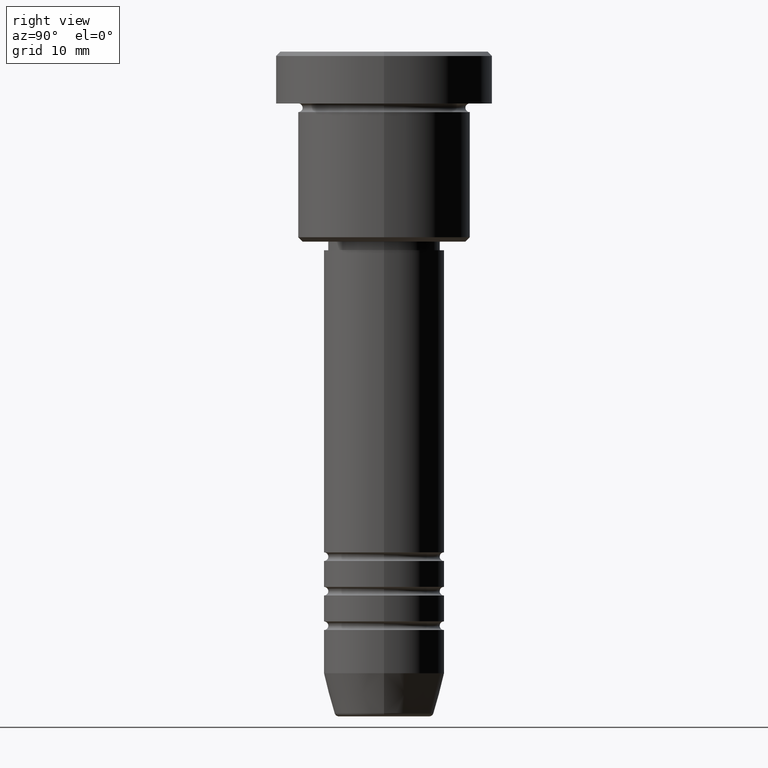
[diagram: clean part render]
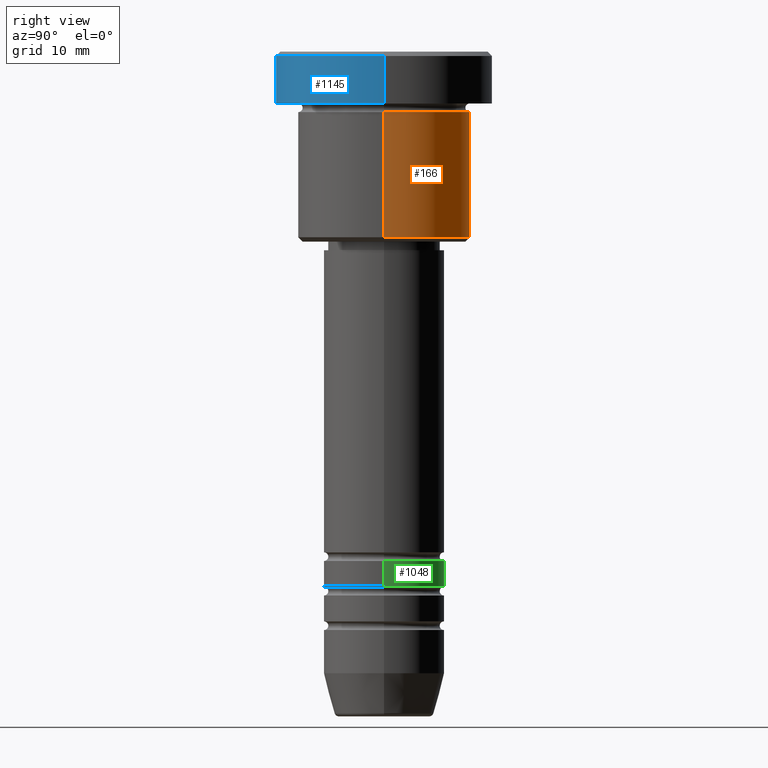
[diagram: same view with three faces highlighted in distinct colors, each labeled with its STEP entity id]
A machine part, right view with three faces highlighted in distinct colors.
Their STEP definitions:

[orange] entity #166 — the highlighted cylindrical surface (partial cylindrical patch) has radius 10 mm, axis along (-0, -0, 1).
#16 = ORIENTED_EDGE ( 'NONE', *, *, #468, .F. ) ;
#26 = EDGE_CURVE ( 'NONE', #832, #741, #337, .T. ) ;
#36 = CARTESIAN_POINT ( 'NONE',  ( -10.00000000000000000, 1.224646799147353256E-15, -6.999999999999996447 ) ) ;
#45 = CARTESIAN_POINT ( 'NONE',  ( -10.00000000000000000, 1.224646799147353256E-15, -21.50000000000001776 ) ) ;
#61 = CARTESIAN_POINT ( 'NONE',  ( 0.000000000000000000, 0.000000000000000000, 0.000000000000000000 ) ) ;
#124 = DIRECTION ( 'NONE',  ( -0.000000000000000000, -0.000000000000000000, 1.000000000000000000 ) ) ;
#130 = AXIS2_PLACEMENT_3D ( 'NONE', #61, #163, #988 ) ;
#146 = ORIENTED_EDGE ( 'NONE', *, *, #26, .T. ) ;
#158 = DIRECTION ( 'NONE',  ( -0.000000000000000000, -0.000000000000000000, 1.000000000000000000 ) ) ;
#163 = DIRECTION ( 'NONE',  ( -0.000000000000000000, -0.000000000000000000, 1.000000000000000000 ) ) ;
#166 = ADVANCED_FACE ( 'NONE', ( #738 ), #634, .T. ) ;
#169 = DIRECTION ( 'NONE',  ( -1.000000000000000000, 0.000000000000000000, 0.000000000000000000 ) ) ;
#197 = EDGE_CURVE ( 'NONE', #1147, #832, #692, .T. ) ;
#226 = VECTOR ( 'NONE', #158, 1000.000000000000000 ) ;
#227 = CARTESIAN_POINT ( 'NONE',  ( 0.000000000000000000, 0.000000000000000000, -6.999999999999996447 ) ) ;
#244 = ORIENTED_EDGE ( 'NONE', *, *, #611, .F. ) ;
#337 = LINE ( 'NONE', #984, #226 ) ;
#407 = CARTESIAN_POINT ( 'NONE',  ( 10.00000000000000000, 0.000000000000000000, -21.50000000000001776 ) ) ;
#432 = EDGE_LOOP ( 'NONE', ( #857, #146, #16, #244 ) ) ;
#443 = VECTOR ( 'NONE', #824, 1000.000000000000000 ) ;
#468 = EDGE_CURVE ( 'NONE', #746, #741, #991, .T. ) ;
#527 = CARTESIAN_POINT ( 'NONE',  ( 0.000000000000000000, 0.000000000000000000, -21.50000000000001776 ) ) ;
#611 = EDGE_CURVE ( 'NONE', #1147, #746, #1116, .T. ) ;
#634 = CYLINDRICAL_SURFACE ( 'NONE', #130, 10.00000000000000000 ) ;
#692 = CIRCLE ( 'NONE', #1170, 10.00000000000000000 ) ;
#738 = FACE_OUTER_BOUND ( 'NONE', #432, .T. ) ;
#741 = VERTEX_POINT ( 'NONE', #36 ) ;
#746 = VERTEX_POINT ( 'NONE', #784 ) ;
#784 = CARTESIAN_POINT ( 'NONE',  ( 10.00000000000000000, 0.000000000000000000, -6.999999999999996447 ) ) ;
#824 = DIRECTION ( 'NONE',  ( -0.000000000000000000, -0.000000000000000000, 1.000000000000000000 ) ) ;
#832 = VERTEX_POINT ( 'NONE', #45 ) ;
#849 = CARTESIAN_POINT ( 'NONE',  ( 10.00000000000000000, 0.000000000000000000, 0.000000000000000000 ) ) ;
#857 = ORIENTED_EDGE ( 'NONE', *, *, #197, .T. ) ;
#902 = DIRECTION ( 'NONE',  ( -0.000000000000000000, -0.000000000000000000, 1.000000000000000000 ) ) ;
#968 = DIRECTION ( 'NONE',  ( 1.000000000000000000, 0.000000000000000000, 0.000000000000000000 ) ) ;
#984 = CARTESIAN_POINT ( 'NONE',  ( -10.00000000000000000, 1.224646799147353256E-15, 0.000000000000000000 ) ) ;
#988 = DIRECTION ( 'NONE',  ( 1.000000000000000000, 0.000000000000000000, 0.000000000000000000 ) ) ;
#991 = CIRCLE ( 'NONE', #1140, 10.00000000000000000 ) ;
#1116 = LINE ( 'NONE', #849, #443 ) ;
#1140 = AXIS2_PLACEMENT_3D ( 'NONE', #227, #124, #968 ) ;
#1147 = VERTEX_POINT ( 'NONE', #407 ) ;
#1170 = AXIS2_PLACEMENT_3D ( 'NONE', #527, #902, #169 ) ;

[blue] entity #1145 — the highlighted cylindrical surface (partial cylindrical patch) has radius 12.5 mm, axis along (-0, -0, 1).
#96 = AXIS2_PLACEMENT_3D ( 'NONE', #304, #1060, #235 ) ;
#152 = AXIS2_PLACEMENT_3D ( 'NONE', #602, #416, #965 ) ;
#182 = CARTESIAN_POINT ( 'NONE',  ( 0.000000000000000000, 0.000000000000000000, -0.4999999999999988343 ) ) ;
#183 = EDGE_CURVE ( 'NONE', #340, #953, #512, .T. ) ;
#194 = EDGE_LOOP ( 'NONE', ( #253, #415, #1154, #307 ) ) ;
#204 = CARTESIAN_POINT ( 'NONE',  ( -12.50000000000000000, 1.530808498934191521E-15, -5.999999999999996447 ) ) ;
#235 = DIRECTION ( 'NONE',  ( 1.000000000000000000, 0.000000000000000000, 0.000000000000000000 ) ) ;
#239 = CARTESIAN_POINT ( 'NONE',  ( 12.50000000000000000, 0.000000000000000000, 0.000000000000000000 ) ) ;
#253 = ORIENTED_EDGE ( 'NONE', *, *, #297, .F. ) ;
#257 = DIRECTION ( 'NONE',  ( 1.000000000000000000, 0.000000000000000000, 0.000000000000000000 ) ) ;
#297 = EDGE_CURVE ( 'NONE', #1119, #953, #844, .T. ) ;
#304 = CARTESIAN_POINT ( 'NONE',  ( 0.000000000000000000, 0.000000000000000000, 0.000000000000000000 ) ) ;
#307 = ORIENTED_EDGE ( 'NONE', *, *, #183, .T. ) ;
#310 = AXIS2_PLACEMENT_3D ( 'NONE', #182, #1076, #257 ) ;
#321 = LINE ( 'NONE', #239, #1012 ) ;
#340 = VERTEX_POINT ( 'NONE', #609 ) ;
#397 = CARTESIAN_POINT ( 'NONE',  ( -12.50000000000000000, 1.530808498934191521E-15, 0.000000000000000000 ) ) ;
#415 = ORIENTED_EDGE ( 'NONE', *, *, #518, .T. ) ;
#416 = DIRECTION ( 'NONE',  ( -0.000000000000000000, -0.000000000000000000, 1.000000000000000000 ) ) ;
#485 = EDGE_CURVE ( 'NONE', #487, #340, #321, .T. ) ;
#487 = VERTEX_POINT ( 'NONE', #860 ) ;
#512 = CIRCLE ( 'NONE', #310, 12.50000000000000000 ) ;
#518 = EDGE_CURVE ( 'NONE', #1119, #487, #575, .T. ) ;
#575 = CIRCLE ( 'NONE', #152, 12.50000000000000000 ) ;
#602 = CARTESIAN_POINT ( 'NONE',  ( 0.000000000000000000, 0.000000000000000000, -5.999999999999996447 ) ) ;
#609 = CARTESIAN_POINT ( 'NONE',  ( 12.50000000000000000, 0.000000000000000000, -0.4999999999999988343 ) ) ;
#679 = DIRECTION ( 'NONE',  ( -0.000000000000000000, -0.000000000000000000, 1.000000000000000000 ) ) ;
#764 = FACE_OUTER_BOUND ( 'NONE', #194, .T. ) ;
#844 = LINE ( 'NONE', #397, #863 ) ;
#860 = CARTESIAN_POINT ( 'NONE',  ( 12.50000000000000000, 0.000000000000000000, -5.999999999999996447 ) ) ;
#863 = VECTOR ( 'NONE', #1114, 1000.000000000000000 ) ;
#953 = VERTEX_POINT ( 'NONE', #1075 ) ;
#965 = DIRECTION ( 'NONE',  ( 1.000000000000000000, 0.000000000000000000, 0.000000000000000000 ) ) ;
#1012 = VECTOR ( 'NONE', #679, 1000.000000000000000 ) ;
#1060 = DIRECTION ( 'NONE',  ( -0.000000000000000000, -0.000000000000000000, 1.000000000000000000 ) ) ;
#1075 = CARTESIAN_POINT ( 'NONE',  ( -12.50000000000000000, 1.530808498934191521E-15, -0.4999999999999988343 ) ) ;
#1076 = DIRECTION ( 'NONE',  ( 0.000000000000000000, 0.000000000000000000, -1.000000000000000000 ) ) ;
#1114 = DIRECTION ( 'NONE',  ( -0.000000000000000000, -0.000000000000000000, 1.000000000000000000 ) ) ;
#1118 = CYLINDRICAL_SURFACE ( 'NONE', #96, 12.50000000000000000 ) ;
#1119 = VERTEX_POINT ( 'NONE', #204 ) ;
#1145 = ADVANCED_FACE ( 'NONE', ( #764 ), #1118, .T. ) ;
#1154 = ORIENTED_EDGE ( 'NONE', *, *, #485, .T. ) ;

[green] entity #1048 — the highlighted cylindrical surface (partial cylindrical patch) has radius 7 mm, axis along (-0, -0, 1).
#42 = EDGE_CURVE ( 'NONE', #635, #1160, #510, .T. ) ;
#53 = EDGE_CURVE ( 'NONE', #206, #1160, #612, .T. ) ;
#55 = DIRECTION ( 'NONE',  ( -0.000000000000000000, -0.000000000000000000, 1.000000000000000000 ) ) ;
#63 = CARTESIAN_POINT ( 'NONE',  ( 0.000000000000000000, 0.000000000000000000, -58.99999999999990052 ) ) ;
#66 = CARTESIAN_POINT ( 'NONE',  ( 7.000000000000000000, 0.000000000000000000, -58.99999999999990052 ) ) ;
#97 = CARTESIAN_POINT ( 'NONE',  ( 0.000000000000000000, 0.000000000000000000, 0.000000000000000000 ) ) ;
#109 = ORIENTED_EDGE ( 'NONE', *, *, #42, .T. ) ;
#119 = DIRECTION ( 'NONE',  ( 1.000000000000000000, 0.000000000000000000, 0.000000000000000000 ) ) ;
#149 = DIRECTION ( 'NONE',  ( -0.000000000000000000, -0.000000000000000000, 1.000000000000000000 ) ) ;
#188 = ORIENTED_EDGE ( 'NONE', *, *, #1085, .F. ) ;
#199 = VERTEX_POINT ( 'NONE', #543 ) ;
#200 = DIRECTION ( 'NONE',  ( -0.000000000000000000, -0.000000000000000000, 1.000000000000000000 ) ) ;
#206 = VERTEX_POINT ( 'NONE', #66 ) ;
#218 = DIRECTION ( 'NONE',  ( 1.000000000000000000, 0.000000000000000000, 0.000000000000000000 ) ) ;
#232 = VECTOR ( 'NONE', #571, 1000.000000000000000 ) ;
#286 = FACE_OUTER_BOUND ( 'NONE', #983, .T. ) ;
#510 = LINE ( 'NONE', #704, #826 ) ;
#543 = CARTESIAN_POINT ( 'NONE',  ( 7.000000000000002665, 0.000000000000000000, -61.99999999999991473 ) ) ;
#552 = LINE ( 'NONE', #579, #232 ) ;
#565 = EDGE_CURVE ( 'NONE', #199, #635, #593, .T. ) ;
#571 = DIRECTION ( 'NONE',  ( -0.000000000000000000, -0.000000000000000000, 1.000000000000000000 ) ) ;
#579 = CARTESIAN_POINT ( 'NONE',  ( 7.000000000000000888, 0.000000000000000000, 0.000000000000000000 ) ) ;
#593 = CIRCLE ( 'NONE', #886, 7.000000000000002665 ) ;
#612 = CIRCLE ( 'NONE', #731, 7.000000000000000000 ) ;
#635 = VERTEX_POINT ( 'NONE', #925 ) ;
#704 = CARTESIAN_POINT ( 'NONE',  ( -7.000000000000000888, 8.572527594031474176E-16, 0.000000000000000000 ) ) ;
#722 = DIRECTION ( 'NONE',  ( -0.000000000000000000, -0.000000000000000000, 1.000000000000000000 ) ) ;
#731 = AXIS2_PLACEMENT_3D ( 'NONE', #63, #722, #1079 ) ;
#758 = AXIS2_PLACEMENT_3D ( 'NONE', #97, #200, #119 ) ;
#759 = ORIENTED_EDGE ( 'NONE', *, *, #53, .F. ) ;
#826 = VECTOR ( 'NONE', #55, 1000.000000000000000 ) ;
#861 = CARTESIAN_POINT ( 'NONE',  ( -7.000000000000000000, 8.572527594031473190E-16, -58.99999999999990052 ) ) ;
#886 = AXIS2_PLACEMENT_3D ( 'NONE', #1137, #149, #218 ) ;
#925 = CARTESIAN_POINT ( 'NONE',  ( -7.000000000000002665, 8.572527594031475162E-16, -61.99999999999991473 ) ) ;
#983 = EDGE_LOOP ( 'NONE', ( #1040, #109, #759, #188 ) ) ;
#1040 = ORIENTED_EDGE ( 'NONE', *, *, #565, .T. ) ;
#1048 = ADVANCED_FACE ( 'NONE', ( #286 ), #1113, .T. ) ;
#1079 = DIRECTION ( 'NONE',  ( 1.000000000000000000, 0.000000000000000000, 0.000000000000000000 ) ) ;
#1085 = EDGE_CURVE ( 'NONE', #199, #206, #552, .T. ) ;
#1113 = CYLINDRICAL_SURFACE ( 'NONE', #758, 7.000000000000000888 ) ;
#1137 = CARTESIAN_POINT ( 'NONE',  ( 0.000000000000000000, 0.000000000000000000, -61.99999999999991473 ) ) ;
#1160 = VERTEX_POINT ( 'NONE', #861 ) ;